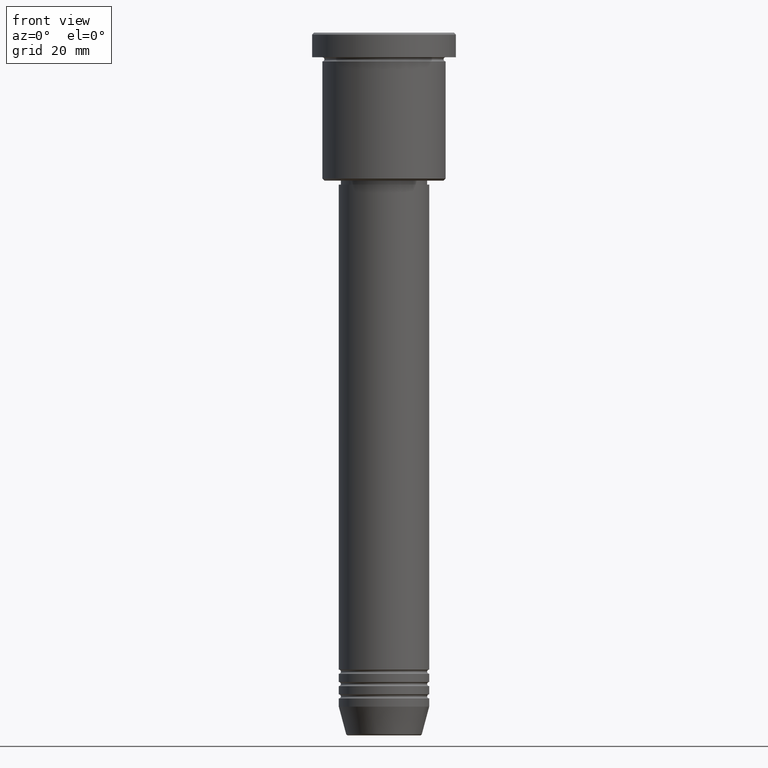
[diagram: clean part render]
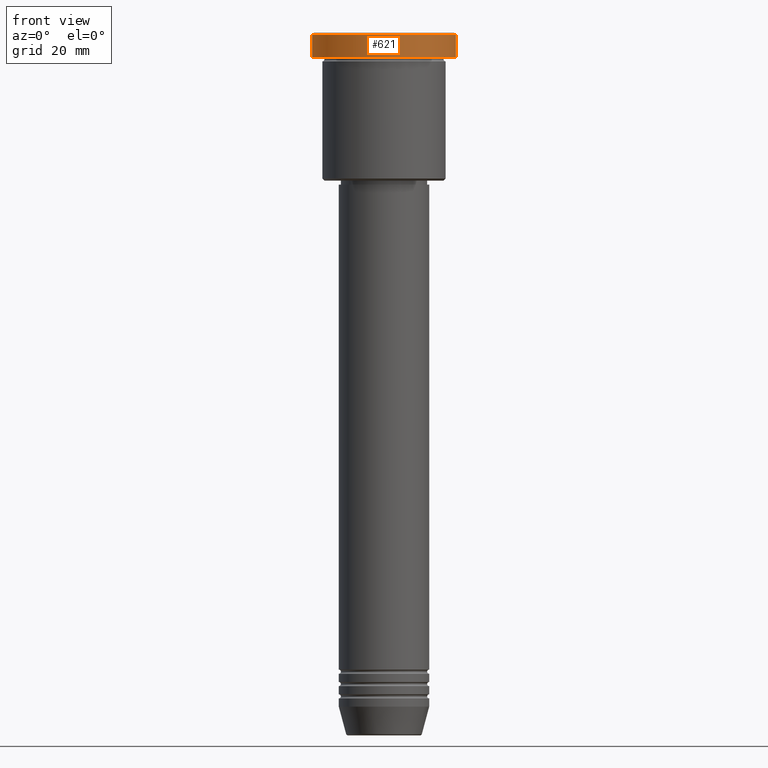
[diagram: same view with one face highlighted and labeled with its STEP entity id]
A machine part, front view. The second image highlights one B-rep face of the part: STEP entity #621.
In plain terms, the highlighted cylindrical surface (partial cylindrical patch) has radius 17.5 mm, axis along (-0, -0, 1).
Its self-contained STEP definition (entity closure, byte-faithful):
#30 = VECTOR ( 'NONE', #94, 1000.000000000000000 ) ;
#61 = AXIS2_PLACEMENT_3D ( 'NONE', #62, #73, #1074 ) ;
#62 = CARTESIAN_POINT ( 'NONE',  ( 0.000000000000000000, 0.000000000000000000, -5.999999999999995559 ) ) ;
#73 = DIRECTION ( 'NONE',  ( -0.000000000000000000, -0.000000000000000000, 1.000000000000000000 ) ) ;
#79 = CIRCLE ( 'NONE', #791, 17.50000000000000000 ) ;
#94 = DIRECTION ( 'NONE',  ( -0.000000000000000000, -0.000000000000000000, 1.000000000000000000 ) ) ;
#118 = CARTESIAN_POINT ( 'NONE',  ( 17.50000000000000000, 0.000000000000000000, 0.000000000000000000 ) ) ;
#140 = EDGE_CURVE ( 'NONE', #277, #154, #388, .T. ) ;
#154 = VERTEX_POINT ( 'NONE', #508 ) ;
#176 = CARTESIAN_POINT ( 'NONE',  ( -17.50000000000000000, 2.143131898507868248E-15, 0.000000000000000000 ) ) ;
#224 = CARTESIAN_POINT ( 'NONE',  ( 0.000000000000000000, 0.000000000000000000, 0.000000000000000000 ) ) ;
#249 = ORIENTED_EDGE ( 'NONE', *, *, #966, .F. ) ;
#268 = LINE ( 'NONE', #176, #30 ) ;
#270 = ORIENTED_EDGE ( 'NONE', *, *, #762, .T. ) ;
#277 = VERTEX_POINT ( 'NONE', #997 ) ;
#309 = EDGE_CURVE ( 'NONE', #154, #448, #79, .T. ) ;
#380 = CYLINDRICAL_SURFACE ( 'NONE', #1153, 17.50000000000000000 ) ;
#388 = LINE ( 'NONE', #118, #715 ) ;
#448 = VERTEX_POINT ( 'NONE', #841 ) ;
#505 = FACE_OUTER_BOUND ( 'NONE', #890, .T. ) ;
#508 = CARTESIAN_POINT ( 'NONE',  ( 17.50000000000000000, 0.000000000000000000, -0.4999999999999727995 ) ) ;
#578 = VERTEX_POINT ( 'NONE', #953 ) ;
#592 = DIRECTION ( 'NONE',  ( 1.000000000000000000, 0.000000000000000000, 0.000000000000000000 ) ) ;
#621 = ADVANCED_FACE ( 'NONE', ( #505 ), #380, .T. ) ;
#699 = DIRECTION ( 'NONE',  ( 0.000000000000000000, 0.000000000000000000, -1.000000000000000000 ) ) ;
#715 = VECTOR ( 'NONE', #1112, 1000.000000000000000 ) ;
#762 = EDGE_CURVE ( 'NONE', #578, #277, #806, .T. ) ;
#791 = AXIS2_PLACEMENT_3D ( 'NONE', #948, #699, #592 ) ;
#799 = ORIENTED_EDGE ( 'NONE', *, *, #309, .T. ) ;
#806 = CIRCLE ( 'NONE', #61, 17.50000000000000000 ) ;
#841 = CARTESIAN_POINT ( 'NONE',  ( -17.50000000000000000, 2.143131898507868248E-15, -0.4999999999999727995 ) ) ;
#857 = DIRECTION ( 'NONE',  ( 1.000000000000000000, 0.000000000000000000, 0.000000000000000000 ) ) ;
#866 = DIRECTION ( 'NONE',  ( -0.000000000000000000, -0.000000000000000000, 1.000000000000000000 ) ) ;
#874 = ORIENTED_EDGE ( 'NONE', *, *, #140, .T. ) ;
#890 = EDGE_LOOP ( 'NONE', ( #249, #270, #874, #799 ) ) ;
#948 = CARTESIAN_POINT ( 'NONE',  ( 0.000000000000000000, 0.000000000000000000, -0.4999999999999727995 ) ) ;
#953 = CARTESIAN_POINT ( 'NONE',  ( -17.50000000000000000, 2.143131898507868248E-15, -5.999999999999995559 ) ) ;
#966 = EDGE_CURVE ( 'NONE', #578, #448, #268, .T. ) ;
#997 = CARTESIAN_POINT ( 'NONE',  ( 17.50000000000000000, 0.000000000000000000, -5.999999999999995559 ) ) ;
#1074 = DIRECTION ( 'NONE',  ( 1.000000000000000000, 0.000000000000000000, 0.000000000000000000 ) ) ;
#1112 = DIRECTION ( 'NONE',  ( -0.000000000000000000, -0.000000000000000000, 1.000000000000000000 ) ) ;
#1153 = AXIS2_PLACEMENT_3D ( 'NONE', #224, #866, #857 ) ;